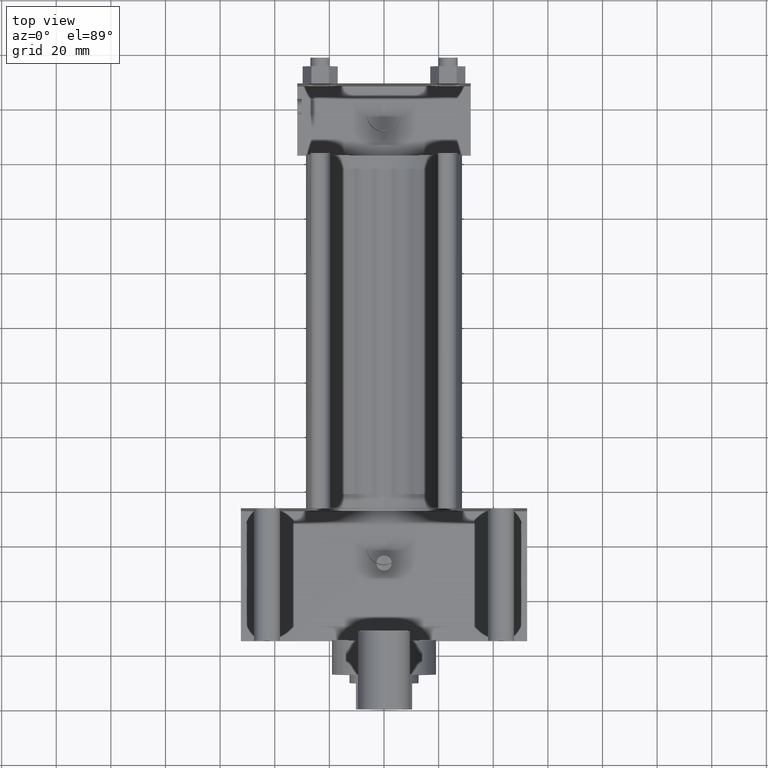
[diagram: clean part render]
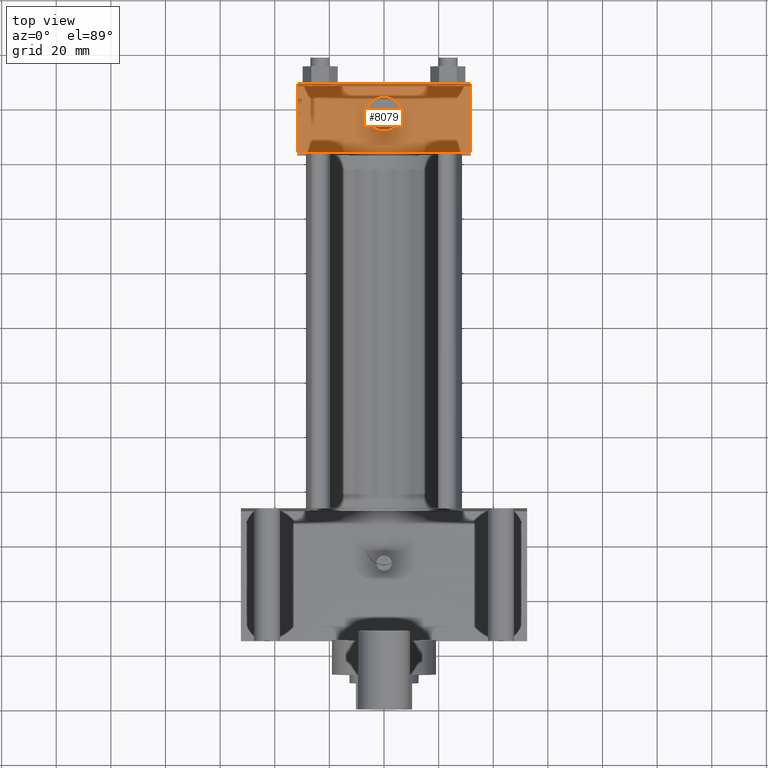
[diagram: same view with one face highlighted and labeled with its STEP entity id]
A machine part, top view. The second image highlights one B-rep face of the part: STEP entity #8079.
In plain terms, the highlighted planar face has unit normal (0, 0, 1).
Its self-contained STEP definition (entity closure, byte-faithful):
#2220=VERTEX_POINT('',#2221);
#2221=CARTESIAN_POINT('',(-3.175000000E+001,2.286000000E+002,3.175000000E+001));
#2222=EDGE_CURVE('',#2227,#2220,#2223,.T.);
#2223=LINE('',#2224,#2225);
#2224=CARTESIAN_POINT('',(3.175000000E+001,2.286000000E+002,3.175000000E+001));
#2225=VECTOR('',#2226,1.0E+000);
#2226=DIRECTION('',(-1.0E+000,0.0E+000,0.0E+000));
#2227=VERTEX_POINT('',#2228);
#2228=CARTESIAN_POINT('',(3.175000000E+001,2.286000000E+002,3.175000000E+001));
#2393=VERTEX_POINT('',#2394);
#2394=CARTESIAN_POINT('',(3.175000000E+001,2.032000000E+002,3.175000000E+001));
#2395=EDGE_CURVE('',#2393,#2400,#2396,.T.);
#2396=LINE('',#2397,#2398);
#2397=CARTESIAN_POINT('',(3.175000000E+001,2.032000000E+002,3.175000000E+001));
#2398=VECTOR('',#2399,1.0E+000);
#2399=DIRECTION('',(-1.0E+000,0.0E+000,0.0E+000));
#2400=VERTEX_POINT('',#2401);
#2401=CARTESIAN_POINT('',(-3.175000000E+001,2.032000000E+002,3.175000000E+001));
#2453=FACE_OUTER_BOUND('',#2455,.T.);
#2454=FACE_BOUND('',#2456,.T.);
#2455=EDGE_LOOP('',(#2457,#2458,#2459,#2460));
#2456=EDGE_LOOP('',(#2471));
#2457=ORIENTED_EDGE('',*,*,#2395,.F.);
#2458=ORIENTED_EDGE('',*,*,#2461,.F.);
#2459=ORIENTED_EDGE('',*,*,#2222,.T.);
#2460=ORIENTED_EDGE('',*,*,#2466,.T.);
#2461=EDGE_CURVE('',#2227,#2393,#2462,.T.);
#2462=LINE('',#2463,#2464);
#2463=CARTESIAN_POINT('',(3.175000000E+001,2.286000000E+002,3.175000000E+001));
#2464=VECTOR('',#2465,1.0E+000);
#2465=DIRECTION('',(0.0E+000,-1.0E+000,0.0E+000));
#2466=EDGE_CURVE('',#2220,#2400,#2467,.T.);
#2467=LINE('',#2468,#2469);
#2468=CARTESIAN_POINT('',(-3.175000000E+001,2.286000000E+002,3.175000000E+001));
#2469=VECTOR('',#2470,1.0E+000);
#2470=DIRECTION('',(0.0E+000,-1.0E+000,0.0E+000));
#2471=ORIENTED_EDGE('',*,*,#2472,.T.);
#2472=EDGE_CURVE('',#2478,#2478,#2473,.T.);
#2473=CIRCLE('',#2474,6.350000000E+000);
#2474=AXIS2_PLACEMENT_3D('',#2475,#2476,#2477);
#2475=CARTESIAN_POINT('',(0.000000000E+000,2.174875000E+002,3.175000000E+001));
#2476=DIRECTION('',(0.0E+000,0.0E+000,-1.0E+000));
#2477=DIRECTION('',(1.0E+000,0.0E+000,0.0E+000));
#2478=VERTEX_POINT('',#2479);
#2479=CARTESIAN_POINT('',(6.350000000E+000,2.174875000E+002,3.175000000E+001));
#2480=PLANE('',#2481);
#2481=AXIS2_PLACEMENT_3D('',#2482,#2483,#2484);
#2482=CARTESIAN_POINT('',(3.175000000E+001,2.286000000E+002,3.175000000E+001));
#2483=DIRECTION('',(0.0E+000,0.0E+000,1.0E+000));
#2484=DIRECTION('',(1.0E+000,0.0E+000,0.0E+000));
#8079=ADVANCED_FACE('',(#2453,#2454),#2480,.T.);